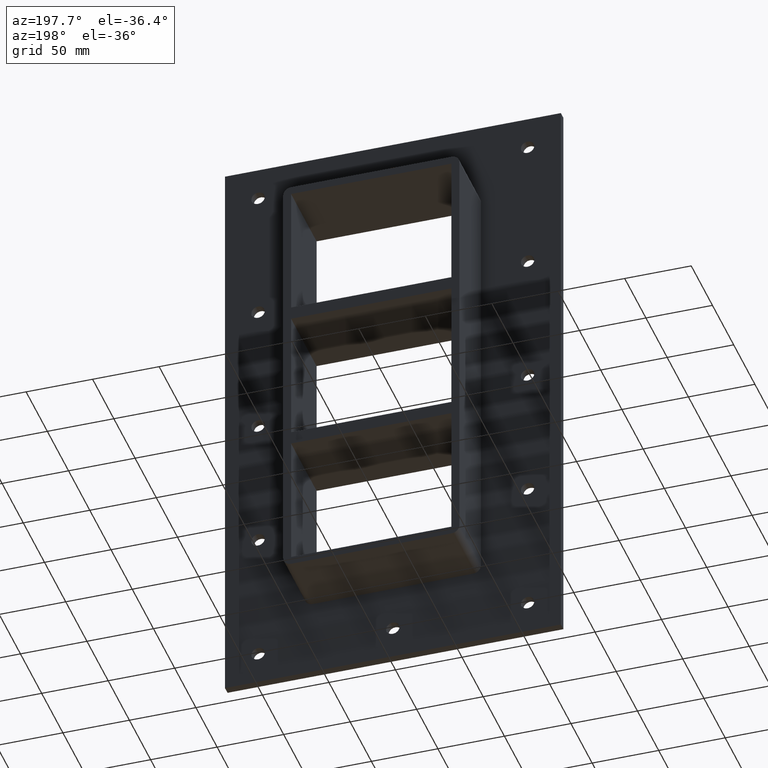
[diagram: clean part render]
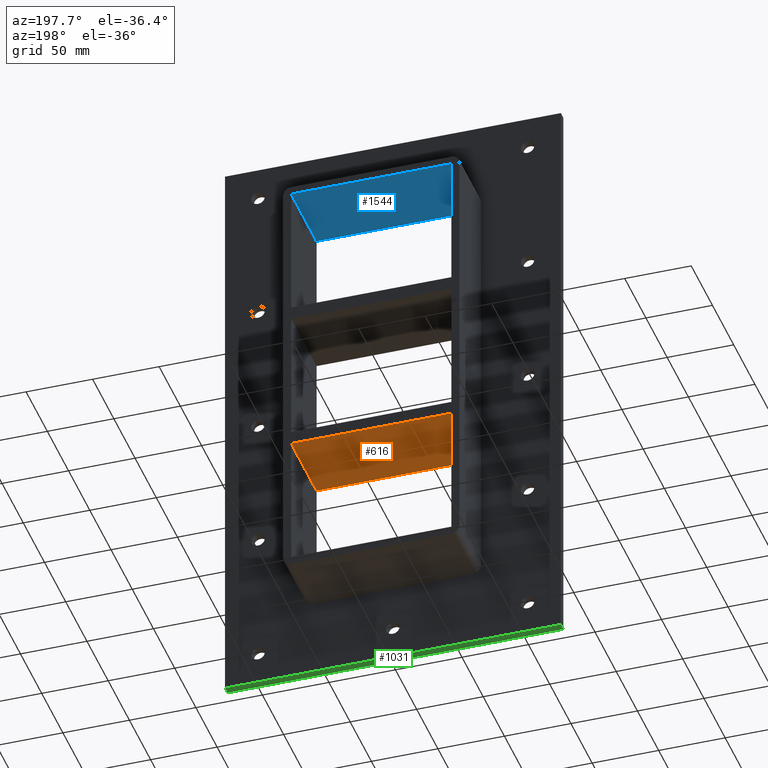
[diagram: same view with three faces highlighted in distinct colors, each labeled with its STEP entity id]
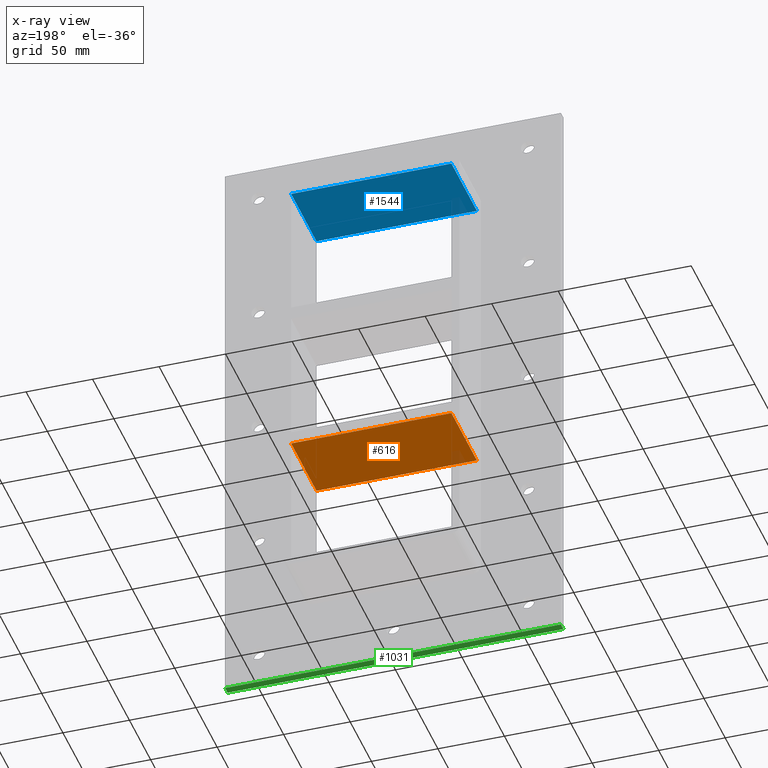
[diagram: x-ray of the same camera — body ghosted, the three highlighted faces saturated]
A machine part, auxiliary view with three faces highlighted in distinct colors.
The next image is the same camera in x-ray (body ghosted, the three faces saturated) — at least one of them is partly hidden behind the body in this view.
Their STEP definitions:

[orange] entity #616 — the highlighted planar face has unit normal (0, 0, -1).
#577=CARTESIAN_POINT('',(60.249999999996362,-3.0,-60.500000000010971));
#578=DIRECTION('',(0.0,0.0,-1.0));
#579=DIRECTION('',(-1.0,0.0,0.0));
#580=AXIS2_PLACEMENT_3D('',#577,#578,#579);
#581=PLANE('',#580);
#582=CARTESIAN_POINT('',(60.249999999996362,-3.0,-60.500000000010971));
#583=VERTEX_POINT('',#582);
#584=CARTESIAN_POINT('',(-60.249999999999694,-3.0,-60.500000000011198));
#585=VERTEX_POINT('',#584);
#586=CARTESIAN_POINT('',(60.249999999996362,-3.0,-60.500000000010971));
#587=DIRECTION('',(-1.0,0.0,0.0));
#588=VECTOR('',#587,120.49999999999606);
#589=LINE('',#586,#588);
#590=EDGE_CURVE('',#583,#585,#589,.T.);
#591=ORIENTED_EDGE('',*,*,#590,.T.);
#592=CARTESIAN_POINT('',(-60.249999999999694,57.0,-60.500000000011198));
#593=VERTEX_POINT('',#592);
#594=CARTESIAN_POINT('',(-60.249999999999993,57.000000000000007,-60.500000000011205));
#595=DIRECTION('',(0.0,-1.0,0.0));
#596=VECTOR('',#595,60.000000000000007);
#597=LINE('',#594,#596);
#598=EDGE_CURVE('',#593,#585,#597,.T.);
#599=ORIENTED_EDGE('',*,*,#598,.F.);
#600=CARTESIAN_POINT('',(60.249999999996369,57.0,-60.500000000010971));
#601=VERTEX_POINT('',#600);
#602=CARTESIAN_POINT('',(60.249999999996362,57.0,-60.500000000010971));
#603=DIRECTION('',(-1.0,0.0,0.0));
#604=VECTOR('',#603,120.49999999999606);
#605=LINE('',#602,#604);
#606=EDGE_CURVE('',#601,#593,#605,.T.);
#607=ORIENTED_EDGE('',*,*,#606,.F.);
#608=CARTESIAN_POINT('',(60.25,-3.0,-60.500000000010957));
#609=DIRECTION('',(0.0,1.0,0.0));
#610=VECTOR('',#609,60.000000000000007);
#611=LINE('',#608,#610);
#612=EDGE_CURVE('',#583,#601,#611,.T.);
#613=ORIENTED_EDGE('',*,*,#612,.F.);
#614=EDGE_LOOP('',(#591,#599,#607,#613));
#615=FACE_OUTER_BOUND('',#614,.T.);
#616=ADVANCED_FACE('',(#615),#581,.T.);

[blue] entity #1544 — the highlighted planar face has unit normal (0, 0, 1).
#490=CARTESIAN_POINT('',(-60.25,57.0,161.50000000000006));
#491=VERTEX_POINT('',#490);
#498=CARTESIAN_POINT('',(-60.25,-3.0,161.50000000000006));
#499=VERTEX_POINT('',#498);
#500=CARTESIAN_POINT('',(-60.249999999999993,-3.0,161.50000000000003));
#501=DIRECTION('',(0.0,1.0,0.0));
#502=VECTOR('',#501,60.0);
#503=LINE('',#500,#502);
#504=EDGE_CURVE('',#499,#491,#503,.T.);
#552=CARTESIAN_POINT('',(60.25,-3.0,161.50000000000006));
#553=VERTEX_POINT('',#552);
#560=CARTESIAN_POINT('',(60.25,57.0,161.50000000000006));
#561=VERTEX_POINT('',#560);
#562=CARTESIAN_POINT('',(60.25,-3.0,161.50000000000003));
#563=DIRECTION('',(0.0,1.0,0.0));
#564=VECTOR('',#563,60.0);
#565=LINE('',#562,#564);
#566=EDGE_CURVE('',#553,#561,#565,.T.);
#1409=CARTESIAN_POINT('',(-60.25,-3.0,161.50000000000003));
#1410=DIRECTION('',(1.0,0.0,0.0));
#1411=VECTOR('',#1410,120.5);
#1412=LINE('',#1409,#1411);
#1413=EDGE_CURVE('',#499,#553,#1412,.T.);
#1528=CARTESIAN_POINT('',(-60.249999999999993,0.0,161.50000000000003));
#1529=DIRECTION('',(0.0,0.0,1.0));
#1530=DIRECTION('',(1.0,0.0,0.0));
#1531=AXIS2_PLACEMENT_3D('',#1528,#1529,#1530);
#1532=PLANE('',#1531);
#1533=ORIENTED_EDGE('',*,*,#504,.T.);
#1534=CARTESIAN_POINT('',(60.25,57.0,161.50000000000003));
#1535=DIRECTION('',(-1.0,0.0,0.0));
#1536=VECTOR('',#1535,120.5);
#1537=LINE('',#1534,#1536);
#1538=EDGE_CURVE('',#561,#491,#1537,.T.);
#1539=ORIENTED_EDGE('',*,*,#1538,.F.);
#1540=ORIENTED_EDGE('',*,*,#566,.F.);
#1541=ORIENTED_EDGE('',*,*,#1413,.F.);
#1542=EDGE_LOOP('',(#1533,#1539,#1540,#1541));
#1543=FACE_OUTER_BOUND('',#1542,.T.);
#1544=ADVANCED_FACE('',(#1543),#1532,.F.);

[green] entity #1031 — the highlighted planar face has unit normal (0, 0, -1).
#716=CARTESIAN_POINT('',(126.24999999999999,6.000000000000001,-227.50000000000006));
#717=VERTEX_POINT('',#716);
#724=CARTESIAN_POINT('',(-126.25000000000001,6.000000000000001,-227.50000000000006));
#725=VERTEX_POINT('',#724);
#726=CARTESIAN_POINT('',(126.25,6.000000000000001,-227.50000000000006));
#727=DIRECTION('',(-1.0,0.0,0.0));
#728=VECTOR('',#727,252.5);
#729=LINE('',#726,#728);
#730=EDGE_CURVE('',#717,#725,#729,.T.);
#862=CARTESIAN_POINT('',(-126.25000000000001,0.0,-227.50000000000006));
#863=VERTEX_POINT('',#862);
#870=CARTESIAN_POINT('',(126.25,0.0,-227.50000000000006));
#871=VERTEX_POINT('',#870);
#872=CARTESIAN_POINT('',(126.25,0.0,-227.50000000000006));
#873=DIRECTION('',(-1.0,0.0,0.0));
#874=VECTOR('',#873,252.5);
#875=LINE('',#872,#874);
#876=EDGE_CURVE('',#871,#863,#875,.T.);
#1006=CARTESIAN_POINT('',(-126.25000000000001,0.0,-227.50000000000006));
#1007=DIRECTION('',(0.0,1.0,0.0));
#1008=VECTOR('',#1007,6.000000000000001);
#1009=LINE('',#1006,#1008);
#1010=EDGE_CURVE('',#863,#725,#1009,.T.);
#1015=CARTESIAN_POINT('',(126.25,0.0,-227.50000000000006));
#1016=DIRECTION('',(0.0,0.0,-1.0));
#1017=DIRECTION('',(-1.0,0.0,0.0));
#1018=AXIS2_PLACEMENT_3D('',#1015,#1016,#1017);
#1019=PLANE('',#1018);
#1020=ORIENTED_EDGE('',*,*,#876,.T.);
#1021=ORIENTED_EDGE('',*,*,#1010,.T.);
#1022=ORIENTED_EDGE('',*,*,#730,.F.);
#1023=CARTESIAN_POINT('',(126.25,0.0,-227.50000000000006));
#1024=DIRECTION('',(0.0,1.0,0.0));
#1025=VECTOR('',#1024,6.000000000000001);
#1026=LINE('',#1023,#1025);
#1027=EDGE_CURVE('',#871,#717,#1026,.T.);
#1028=ORIENTED_EDGE('',*,*,#1027,.F.);
#1029=EDGE_LOOP('',(#1020,#1021,#1022,#1028));
#1030=FACE_OUTER_BOUND('',#1029,.T.);
#1031=ADVANCED_FACE('',(#1030),#1019,.T.);